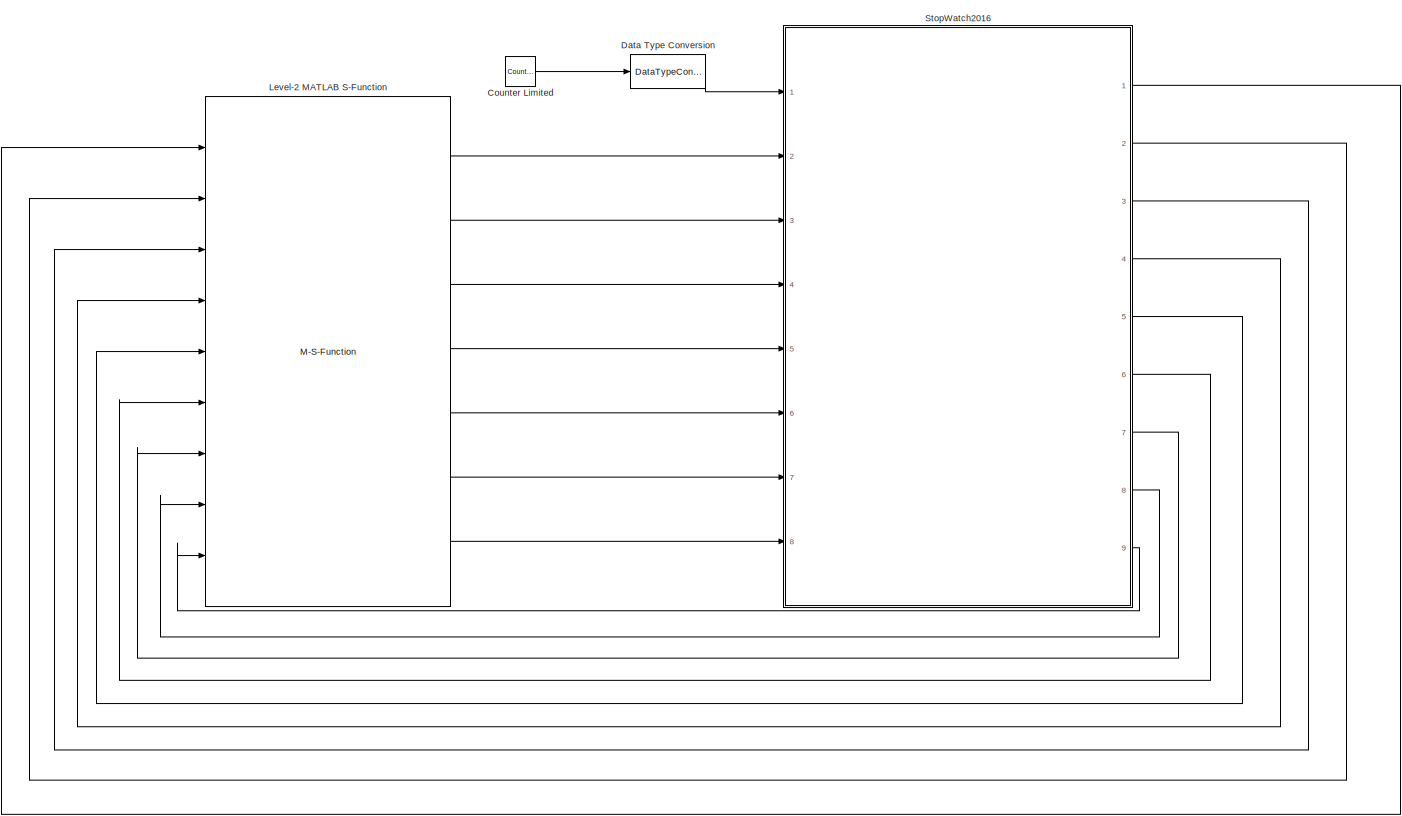
[diagram: root canvas - part 1/1, most of the canvas]
MODEL slx_f81cbcf63245
KIND model
CONFIG AbsTol = auto
CONFIG EnableMultiTasking = on
CONFIG FixedStep = Auto
CONFIG MaxStep = auto
CONFIG MinStep = auto
CONFIG RelTol = 1e-3
CONFIG SampleTimeConstraint = Unconstrained
CONFIG Solver = ode3
CONFIG SolverName = ode3
CONFIG StartTime = 0.0
CONFIG StopTime = Inf
BLOCK [Reference] Counter Limited  REF=simulink/Sources/Counter
Limited
  Ports = [0, 1]
  SourceBlock = simulink/Sources/Counter\nLimited
  SourceType = Counter Limited
BLOCK [DataTypeConversion] Data Type Conversion
  OutDataTypeStr = boolean
  RndMeth = Floor
  SaturateOnIntegerOverflow = off
BLOCK [M-S-Function] Level-2 MATLAB S-Function
  FunctionName = WI
  Ports = [9, 7]
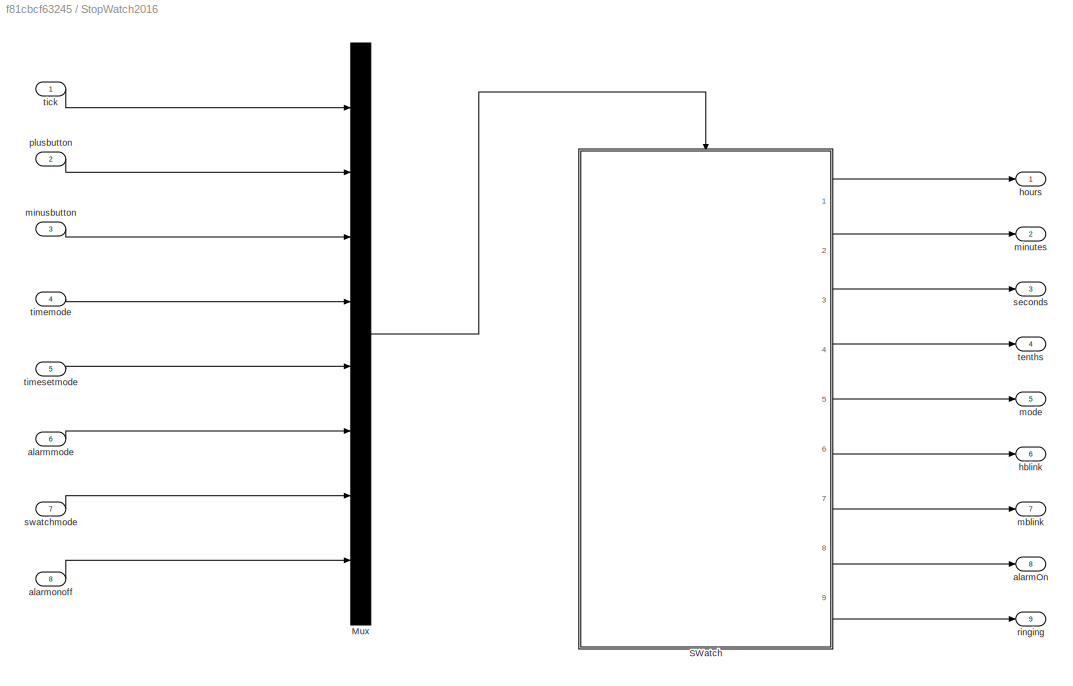
BLOCK [SubSystem] StopWatch2016
  Ports = [8, 9]
  RequestExecContextInheritance = off
  Variant = off
BLOCK [Mux] StopWatch2016/Mux
  DisplayOption = bar
  Inputs = 8
  Ports = [8, 1]
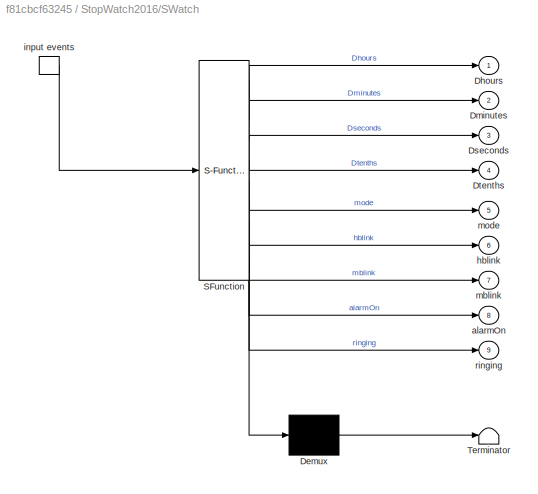
BLOCK [SubSystem] StopWatch2016/SWatch
  ErrorFcn = Stateflow.Translate.translate
  PermitHierarchicalResolution = ExplicitOnly
  Ports = [0, 9, 0, 1]
  RequestExecContextInheritance = off
  SFBlockType = Chart
  TreatAsAtomicUnit = on
  Variant = off
BLOCK [Demux] StopWatch2016/SWatch/ Demux 
  Outputs = 1
  Ports = [1, 1]
BLOCK [S-Function] StopWatch2016/SWatch/ SFunction 
  EnableBusSupport = on
  FunctionName = sf_sfun
  PortCounts = [1 10]
  Ports = [1, 10]
  SFcnIsStateOwnerBlock = off
  SFunctionDeploymentMode = off
  Tag = Stateflow S-Function StopWatchProject 3
BLOCK [Terminator] StopWatch2016/SWatch/ Terminator 
BLOCK [Outport] StopWatch2016/SWatch/Dhours
  IconDisplay = Port number
BLOCK [Outport] StopWatch2016/SWatch/Dminutes
  IconDisplay = Port number
  Port = 2
BLOCK [Outport] StopWatch2016/SWatch/Dseconds
  IconDisplay = Port number
  Port = 3
BLOCK [Outport] StopWatch2016/SWatch/Dtenths
  IconDisplay = Port number
  Port = 4
BLOCK [Outport] StopWatch2016/SWatch/alarmOn
  IconDisplay = Port number
  Port = 8
BLOCK [Outport] StopWatch2016/SWatch/hblink
  IconDisplay = Port number
  Port = 6
BLOCK [TriggerPort] StopWatch2016/SWatch/input events
  Ports = [0, 1]
  ShowOutputPort = on
  StatesWhenEnabling = held
  TriggerType = either
  VariantControl = Variant
BLOCK [Outport] StopWatch2016/SWatch/mblink
  IconDisplay = Port number
  Port = 7
BLOCK [Outport] StopWatch2016/SWatch/mode
  IconDisplay = Port number
  Port = 5
BLOCK [Outport] StopWatch2016/SWatch/ringing
  IconDisplay = Port number
  Port = 9
BLOCK [Outport] StopWatch2016/alarmOn
  IconDisplay = Port number
  OutDataTypeStr = boolean
  Port = 8
BLOCK [Inport] StopWatch2016/alarmmode
  IconDisplay = Port number
  Port = 6
BLOCK [Inport] StopWatch2016/alarmonoff
  IconDisplay = Port number
  OutDataTypeStr = boolean
  Port = 8
BLOCK [Outport] StopWatch2016/hblink
  IconDisplay = Port number
  OutDataTypeStr = boolean
  Port = 6
BLOCK [Outport] StopWatch2016/hours
  IconDisplay = Port number
BLOCK [Outport] StopWatch2016/mblink
  IconDisplay = Port number
  OutDataTypeStr = boolean
  Port = 7
BLOCK [Inport] StopWatch2016/minusbutton
  IconDisplay = Port number
  Port = 3
BLOCK [Outport] StopWatch2016/minutes
  IconDisplay = Port number
  Port = 2
BLOCK [Outport] StopWatch2016/mode
  IconDisplay = Port number
  Port = 5
BLOCK [Inport] StopWatch2016/plusbutton
  IconDisplay = Port number
  Port = 2
BLOCK [Outport] StopWatch2016/ringing
  IconDisplay = Port number
  OutDataTypeStr = boolean
  Port = 9
BLOCK [Outport] StopWatch2016/seconds
  IconDisplay = Port number
  Port = 3
BLOCK [Inport] StopWatch2016/swatchmode
  IconDisplay = Port number
  Port = 7
BLOCK [Outport] StopWatch2016/tenths
  IconDisplay = Port number
  Port = 4
BLOCK [Inport] StopWatch2016/tick
  IconDisplay = Port number
BLOCK [Inport] StopWatch2016/timemode
  IconDisplay = Port number
  Port = 4
BLOCK [Inport] StopWatch2016/timesetmode
  IconDisplay = Port number
  Port = 5
LINE Counter Limited:1 -> Data Type Conversion:1
LINE Data Type Conversion:1 -> StopWatch2016:1
LINE Level-2 MATLAB S-Function:1 -> StopWatch2016:2
LINE Level-2 MATLAB S-Function:2 -> StopWatch2016:3
LINE Level-2 MATLAB S-Function:3 -> StopWatch2016:4
LINE Level-2 MATLAB S-Function:4 -> StopWatch2016:5
LINE Level-2 MATLAB S-Function:5 -> StopWatch2016:6
LINE Level-2 MATLAB S-Function:6 -> StopWatch2016:7
LINE Level-2 MATLAB S-Function:7 -> StopWatch2016:8
LINE StopWatch2016/Mux:1 -> StopWatch2016/SWatch:trigger
LINE StopWatch2016/SWatch:1 -> StopWatch2016/hours:1
LINE StopWatch2016/SWatch:2 -> StopWatch2016/minutes:1
LINE StopWatch2016/SWatch:3 -> StopWatch2016/seconds:1
LINE StopWatch2016/SWatch:4 -> StopWatch2016/tenths:1
LINE StopWatch2016/SWatch:5 -> StopWatch2016/mode:1
LINE StopWatch2016/SWatch:6 -> StopWatch2016/hblink:1
LINE StopWatch2016/SWatch:7 -> StopWatch2016/mblink:1
LINE StopWatch2016/SWatch:8 -> StopWatch2016/alarmOn:1
LINE StopWatch2016/SWatch:9 -> StopWatch2016/ringing:1
LINE StopWatch2016/alarmmode:1 -> StopWatch2016/Mux:6
LINE StopWatch2016/alarmonoff:1 -> StopWatch2016/Mux:8
LINE StopWatch2016/minusbutton:1 -> StopWatch2016/Mux:3
LINE StopWatch2016/plusbutton:1 -> StopWatch2016/Mux:2
LINE StopWatch2016/swatchmode:1 -> StopWatch2016/Mux:7
LINE StopWatch2016/tick:1 -> StopWatch2016/Mux:1
LINE StopWatch2016/timemode:1 -> StopWatch2016/Mux:4
LINE StopWatch2016/timesetmode:1 -> StopWatch2016/Mux:5
LINE StopWatch2016:1 -> Level-2 MATLAB S-Function:1
LINE StopWatch2016:2 -> Level-2 MATLAB S-Function:2
LINE StopWatch2016:3 -> Level-2 MATLAB S-Function:3
LINE StopWatch2016:4 -> Level-2 MATLAB S-Function:4
LINE StopWatch2016:5 -> Level-2 MATLAB S-Function:5
LINE StopWatch2016:6 -> Level-2 MATLAB S-Function:6
LINE StopWatch2016:7 -> Level-2 MATLAB S-Function:7
LINE StopWatch2016:8 -> Level-2 MATLAB S-Function:8
LINE StopWatch2016:9 -> Level-2 MATLAB S-Function:9
CHART StopWatch2016/SWatch states=17 transitions=59
  STATE_LABEL 'Control'
  STATE_LABEL 'timemode\nen:mode=uint8(0)'
  STATE_LABEL 'ttick{Dhours=hours;Dminutes=minutes;Dseconds=seconds}'
  STATE_LABEL 'timesetmode\nentry:mode=uint8(1)'
  STATE_LABEL 'sethours\nen:Dhours=hours; Dminutes=minutes; hblink= true;\nex: hblink= false;'
  STATE_LABEL 'setminutes\nen:Dminutes=minutes; mblink= true;\nex: mblink= false;'
  STATE_LABEL 'Bminus/{hours = hours - 1}'
  STATE_LABEL 'Bminus[hours==0]/{hours= uint8(23)}'
  STATE_LABEL 'Bminus/{minutes = minutes - 1}'
  STATE_LABEL 'Bminus[minutes==0]/{minutes= uint8(59)}'
  STATE_LABEL 'Btimeset'
  STATE_LABEL 'Btimeset'
  STATE_LABEL 'Bplus/{hours=mod(hours+1,24)}'
  STATE_LABEL 'Bplus/{minutes=mod(minutes+1,60)}'
  STATE_LABEL 'swatchmode\nen:mode=uint8(3)'
  STATE_LABEL 'stopped\nen:Dhours=SWhours;Dminutes=SWminutes;Dseconds=SWseconds;Dtenths=SWtenths;'
  STATE_LABEL 'running\ndu: if(lapmode==false) Dhours=SWhours;Dminutes=SWminutes;Dseconds=SWseconds;Dtenths=SWtenths; end'
  STATE_LABEL 'counting\n\n'
  STATE_LABEL 'ttick{SWtenths = mod(SWtenths + 1,10)}'
  STATE_LABEL '[SWtenths==0]{SWseconds=mod(SWseconds+1,60)}'
  STATE_LABEL '[SWseconds==0]{SWminutes=mod(SWminutes+1,60)}'
  STATE_LABEL '[SWminutes==0]{SWhours=mod(SWhours+1,60)}'
  STATE_LABEL '{SWhours= uint8(0); SWminutes= uint8(0); SWseconds= uint8(0); SWtenths= uint8(0);}'
  STATE_LABEL 'Bstop'
  STATE_LABEL 'Bplus {lapmode= false;}'
  STATE_LABEL 'Bplus{lapmode= true;}'
  STATE_LABEL 'Bminus[lapmode==false]{lapmode= true}'
  STATE_LABEL 'Bminus{lapmode= false}'
  STATE_LABEL 'Bplus[lapmode==true]{lapmode= false}'
  STATE_LABEL 'alarmmode\nen:mode=uint8(2)'
  STATE_LABEL 'sethours\nen:Dhours=Ahours; Dminutes=Aminutes; hblink= true;\nex: hblink= false;'
  STATE_LABEL 'setminutes\nen:Dminutes=Aminutes; mblink= true;\nex: mblink= false;'
  STATE_LABEL 'Bminus[Ahours==0]/{Ahours= uint8(23)}'
  STATE_LABEL 'Bminus/{Ahours = Ahours - 1}'
  STATE_LABEL 'Bminus/{Aminutes = Aminutes - 1}'
  STATE_LABEL 'Bminus[Aminutes==0]/{Aminutes= uint8(59)}'
  STATE_LABEL 'Balarm'
  STATE_LABEL 'Balarm'
  STATE_LABEL 'Bplus/{Ahours=mod(Ahours+1,24)}'
  STATE_LABEL 'Bplus/{Aminutes=mod(Aminutes+1,60)}'
